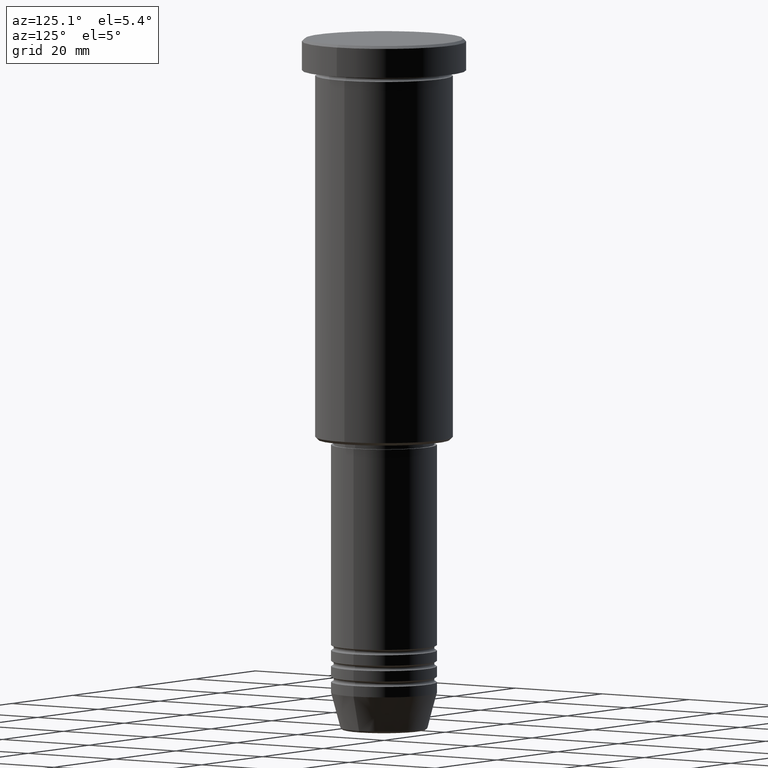
[diagram: clean part render]
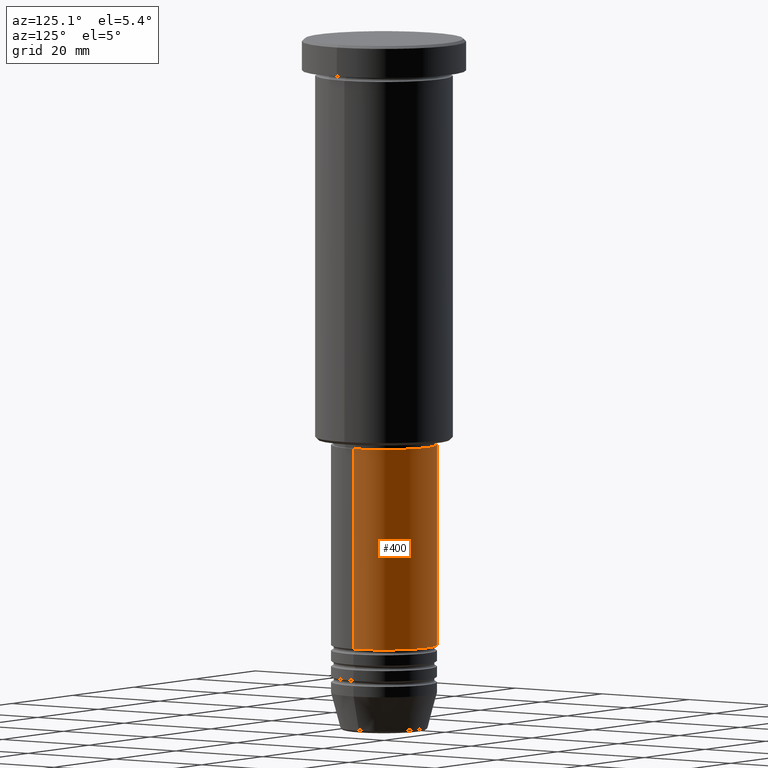
[diagram: same view with one face highlighted and labeled with its STEP entity id]
A machine part, auxiliary view. The second image highlights one B-rep face of the part: STEP entity #400.
In plain terms, the highlighted cylindrical surface (partial cylindrical patch) has radius 10 mm, axis along (-0, -0, 1).
Its self-contained STEP definition (entity closure, byte-faithful):
#91 = CARTESIAN_POINT ( 'NONE',  ( 0.000000000000000000, 0.000000000000000000, -114.9999999999999574 ) ) ;
#100 = EDGE_CURVE ( 'NONE', #519, #360, #456, .T. ) ;
#130 = ORIENTED_EDGE ( 'NONE', *, *, #228, .T. ) ;
#155 = ORIENTED_EDGE ( 'NONE', *, *, #323, .F. ) ;
#167 = CARTESIAN_POINT ( 'NONE',  ( -10.00000000000000000, 1.224646799147353256E-15, -114.9999999999999574 ) ) ;
#175 = AXIS2_PLACEMENT_3D ( 'NONE', #91, #941, #269 ) ;
#202 = FACE_OUTER_BOUND ( 'NONE', #955, .T. ) ;
#228 = EDGE_CURVE ( 'NONE', #1045, #360, #997, .T. ) ;
#240 = DIRECTION ( 'NONE',  ( -0.000000000000000000, -0.000000000000000000, 1.000000000000000000 ) ) ;
#269 = DIRECTION ( 'NONE',  ( 1.000000000000000000, 0.000000000000000000, 0.000000000000000000 ) ) ;
#282 = ORIENTED_EDGE ( 'NONE', *, *, #100, .F. ) ;
#298 = DIRECTION ( 'NONE',  ( 1.000000000000000000, 0.000000000000000000, 0.000000000000000000 ) ) ;
#323 = EDGE_CURVE ( 'NONE', #495, #519, #576, .T. ) ;
#333 = CARTESIAN_POINT ( 'NONE',  ( 10.00000000000000000, 0.000000000000000000, -114.9999999999999574 ) ) ;
#360 = VERTEX_POINT ( 'NONE', #473 ) ;
#386 = CARTESIAN_POINT ( 'NONE',  ( 0.000000000000000000, 0.000000000000000000, 0.000000000000000000 ) ) ;
#400 = ADVANCED_FACE ( 'NONE', ( #202 ), #570, .T. ) ;
#456 = CIRCLE ( 'NONE', #980, 10.00000000000000000 ) ;
#473 = CARTESIAN_POINT ( 'NONE',  ( -10.00000000000000000, 1.224646799147353256E-15, -76.99999999999998579 ) ) ;
#489 = CARTESIAN_POINT ( 'NONE',  ( 10.00000000000000000, 0.000000000000000000, 0.000000000000000000 ) ) ;
#495 = VERTEX_POINT ( 'NONE', #333 ) ;
#519 = VERTEX_POINT ( 'NONE', #826 ) ;
#570 = CYLINDRICAL_SURFACE ( 'NONE', #1043, 10.00000000000000000 ) ;
#576 = LINE ( 'NONE', #489, #640 ) ;
#607 = DIRECTION ( 'NONE',  ( 1.000000000000000000, 0.000000000000000000, 0.000000000000000000 ) ) ;
#640 = VECTOR ( 'NONE', #944, 1000.000000000000000 ) ;
#724 = CIRCLE ( 'NONE', #175, 10.00000000000000000 ) ;
#826 = CARTESIAN_POINT ( 'NONE',  ( 10.00000000000000000, 0.000000000000000000, -76.99999999999998579 ) ) ;
#831 = DIRECTION ( 'NONE',  ( -0.000000000000000000, -0.000000000000000000, 1.000000000000000000 ) ) ;
#897 = CARTESIAN_POINT ( 'NONE',  ( 0.000000000000000000, 0.000000000000000000, -76.99999999999998579 ) ) ;
#920 = EDGE_CURVE ( 'NONE', #495, #1045, #724, .T. ) ;
#926 = VECTOR ( 'NONE', #831, 1000.000000000000000 ) ;
#941 = DIRECTION ( 'NONE',  ( -0.000000000000000000, -0.000000000000000000, 1.000000000000000000 ) ) ;
#944 = DIRECTION ( 'NONE',  ( -0.000000000000000000, -0.000000000000000000, 1.000000000000000000 ) ) ;
#955 = EDGE_LOOP ( 'NONE', ( #1102, #130, #282, #155 ) ) ;
#980 = AXIS2_PLACEMENT_3D ( 'NONE', #897, #240, #607 ) ;
#997 = LINE ( 'NONE', #1181, #926 ) ;
#1043 = AXIS2_PLACEMENT_3D ( 'NONE', #386, #1123, #298 ) ;
#1045 = VERTEX_POINT ( 'NONE', #167 ) ;
#1102 = ORIENTED_EDGE ( 'NONE', *, *, #920, .T. ) ;
#1123 = DIRECTION ( 'NONE',  ( -0.000000000000000000, -0.000000000000000000, 1.000000000000000000 ) ) ;
#1181 = CARTESIAN_POINT ( 'NONE',  ( -10.00000000000000000, 1.224646799147353256E-15, 0.000000000000000000 ) ) ;